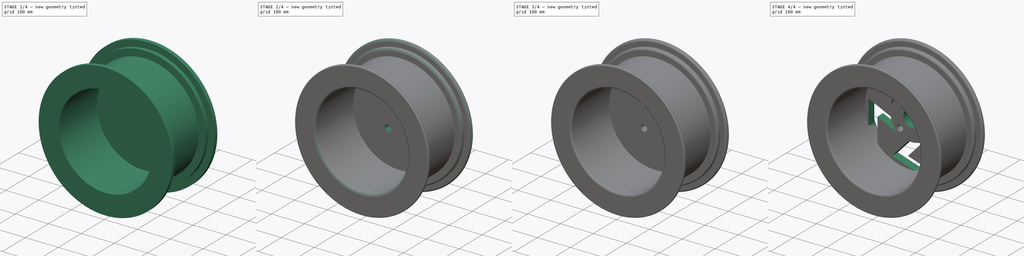
[diagram: build sequence overview — one tinted view per stage of 4, left to right]
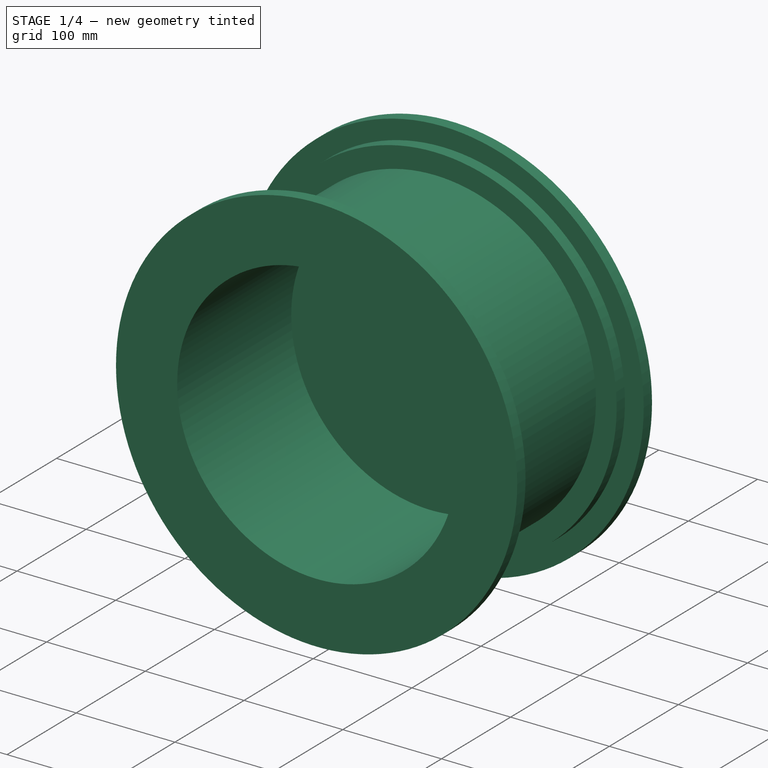
[diagram: stage 1 of 4 — iso view after this stage's code; geometry added in this stage tinted green]
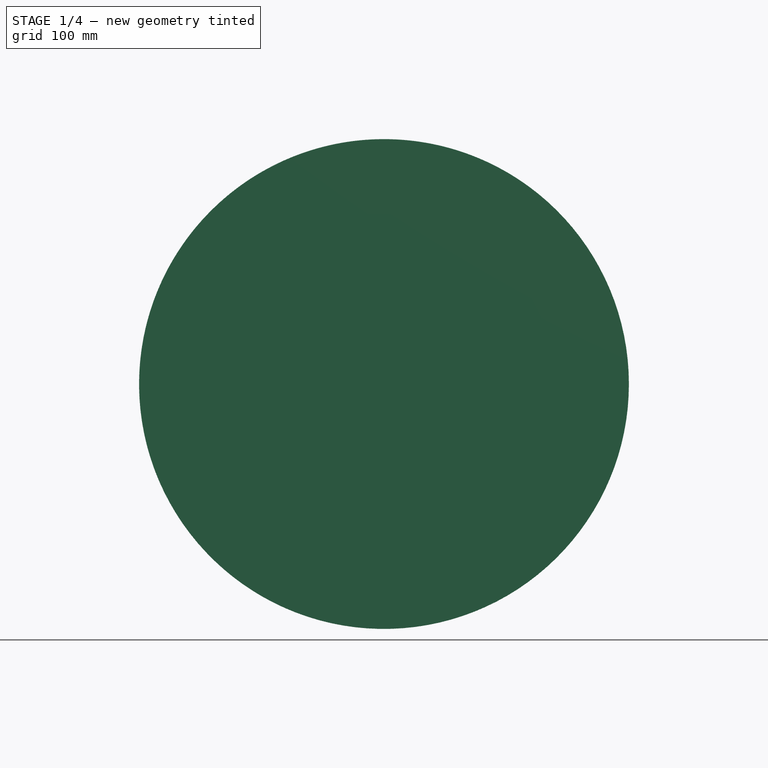
[diagram: stage 1 of 4 — front view after this stage's code; geometry added in this stage tinted green]
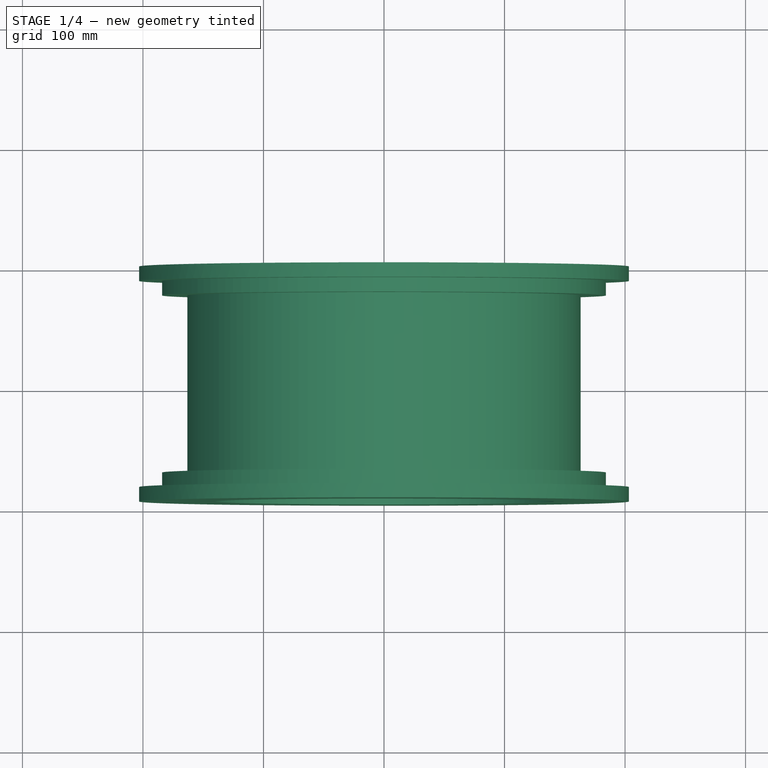
[diagram: stage 1 of 4 — top view after this stage's code; geometry added in this stage tinted green]
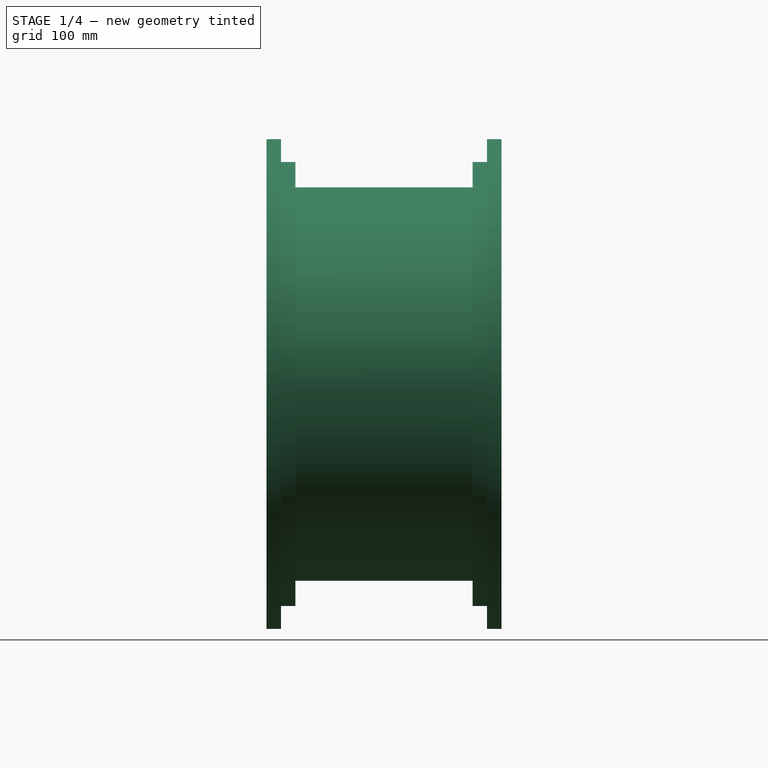
[diagram: stage 1 of 4 — right view after this stage's code; geometry added in this stage tinted green]
FCSTD DOCUMENT  (FreeCAD 1.0R39109 (Git))
Label: Rim Design 1
License: All rights reserved
LicenseURL: https://en.wikipedia.org/wiki/All_rights_reserved
objects: Sketcher::SketchObject×8, PartDesign::Pocket×5, PartDesign::Fillet×4, App::VarSet×2, PartDesign::Pad×1, PartDesign::Groove×1, PartDesign::PolarPattern×1, PartDesign::Body×1
note: 52 computed .brp shape members not serialized (recipe doc carries the construction recipe); baked Part::Feature solids carry a one-line shape summary decoded from their .brp

FEATURE [Sketcher::SketchObject] Sketch
  ArcFitTolerance = 1e-06
  AttachmentSupport = -> [XZ_Plane]
  FullyConstrained = true
  MakeInternals = false
  MapMode = 5
  Placement = pos=(0,0,0) rot=(1,0,0;1.5708rad)
  expr: Constraints[1] = VarSet.Rim_Size
  sketch-geometry (1):
    g0: Circle CenterX=0 CenterY=0 CenterZ=0 NormalX=0 NormalY=0 NormalZ=1 AngleXU=0 Radius=203.2
  constraints (2):
    c: Coincident(g0,g-1)
    c: Diameter(g0) = 406.4
FEATURE [PartDesign::Pad] Pad  label="Base Cylinder"
  Direction = (0,-1,2e-16)
  Length = 195
  Length2 = 10
  Placement = pos=(0,0,0) rot=(1,0,0;1.5708rad)
  Profile = -> Sketch
  ReferenceAxis = -> Sketch [N_Axis]
  Refine = true
  Suppressed = false
  Type = 0
  expr: Length = VarSet001.Tyre_Width
FEATURE [Sketcher::SketchObject] Sketch001  label="Interrnal Drum"
  ArcFitTolerance = 1e-06
  AttachmentSupport = -> [Pad]
  FullyConstrained = true
  MakeInternals = false
  MapMode = 5
  Placement = pos=(0,-195,0) rot=(1,0,0;1.5708rad)
FEATURE [App::VarSet] VarSet  label="Rim Size"
  Rim_Size = 406.4
  expr: Rim_Size = 16 in
FEATURE [App::VarSet] VarSet001  label="Tyre Width"
  Tyre_Width = 195
FEATURE [Sketcher::SketchObject] Sketch002
  ArcFitTolerance = 1e-06
  AttachmentSupport = -> [Pad]
  FullyConstrained = true
  MakeInternals = false
  MapMode = 5
  Placement = pos=(0,-195,0) rot=(1,0,0;1.5708rad)
  expr: Constraints[1] = <<Rim Size>>.Rim_Size - 124 mm
  sketch-geometry (1):
    g0: Circle CenterX=0 CenterY=0 CenterZ=0 NormalX=0 NormalY=0 NormalZ=1 AngleXU=0 Radius=141.2
  constraints (2):
    c: Coincident(g0,g-1)
    c: Diameter(g0) = 282.4
FEATURE [PartDesign::Pocket] Pocket
  BaseFeature = -> Pad
  Direction = (0,1,-2e-16)
  Length = 165
  Length2 = 5
  Placement = pos=(0,0,0) rot=(1,0,0;1.5708rad)
  Profile = -> Sketch002
  ReferenceAxis = -> Sketch002 [N_Axis]
  Refine = true
  Suppressed = false
  Type = 0
  expr: Length = <<Tyre Width>>.Tyre_Width - 30 mm
FEATURE [Sketcher::SketchObject] Sketch003
  ArcFitTolerance = 1e-06
  AttachmentSupport = -> [YZ_Plane]
  ExternalGeometry = -> [Pocket]
  FullyConstrained = true
  MakeInternals = false
  MapMode = 5
  Placement = pos=(0,0,0) rot=(0.57735,0.57735,0.57735;2.0944rad)
  sketch-geometry (10):
    g0: LineSegment [constr] StartX=-195 StartY=203.2 StartZ=0 EndX=-183 EndY=203.2 EndZ=0
    g1: LineSegment StartX=-183 StartY=203.2 StartZ=0 EndX=-183 EndY=184.2 EndZ=0
    g2: LineSegment StartX=-183 StartY=184.2 StartZ=0 EndX=-171 EndY=184.2 EndZ=0
    g3: LineSegment StartX=-171 StartY=184.2 StartZ=0 EndX=-171 EndY=163.2 EndZ=0
    g4: LineSegment StartX=-171 StartY=163.2 StartZ=0 EndX=-24 EndY=163.2 EndZ=0
    g5: LineSegment StartX=-24 StartY=163.2 StartZ=0 EndX=-24 EndY=184.2 EndZ=0
    g6: LineSegment StartX=-24 StartY=184.2 StartZ=0 EndX=-12 EndY=184.2 EndZ=0
    g7: LineSegment StartX=-12 StartY=184.2 StartZ=0 EndX=-12 EndY=203.2 EndZ=0
    g8: LineSegment [constr] StartX=-12 StartY=203.2 StartZ=0 EndX=4.44e-14 EndY=203.2 EndZ=0
    g9: LineSegment StartX=-183 StartY=203.2 StartZ=0 EndX=-12 EndY=203.2 EndZ=0
  constraints (28):
    c: Coincident(g-3,g0)
    c: Horizontal(g0)
    c: Coincident(g0,g1)
    c: Vertical(g1)
    c: Coincident(g1,g2)
    c: Horizontal(g2)
    c: Coincident(g2,g3)
    c: Vertical(g3)
    c: Coincident(g3,g4)
    c: Horizontal(g4)
    c: Coincident(g4,g5)
    c: Vertical(g5)
    c: Coincident(g5,g6)
    c: Horizontal(g6)
    c: Coincident(g6,g7)
    c: Vertical(g7)
    c: Coincident(g7,g8)
    c: Coincident(g8,g-4)
    c: Horizontal(g8)
    c: DistanceX(g0,g0) = 12
    c: DistanceX(g8,g8) = 12
    c: DistanceY(g7,g7) = 19
    c: DistanceY(g1,g1) = 19
    c: DistanceX(g2,g2) = 12
    c: DistanceX(g6,g6) = 12
    c: Coincident(g9,g0)
    c: Coincident(g9,g7)
    c: Distance(g4,g9) = 40
FEATURE [PartDesign::Groove] Groove
  Angle = 360
  Angle2 = 60
  Axis = (1e-16,1,-1e-16)
  Base = (0,0,0)
  BaseFeature = -> Pocket
  Placement = pos=(0,0,0) rot=(1,0,0;1.5708rad)
  Profile = -> Sketch003
  ReferenceAxis = -> Y_Axis
  Refine = true
  Reversed = true
  Suppressed = false
  Type = 0
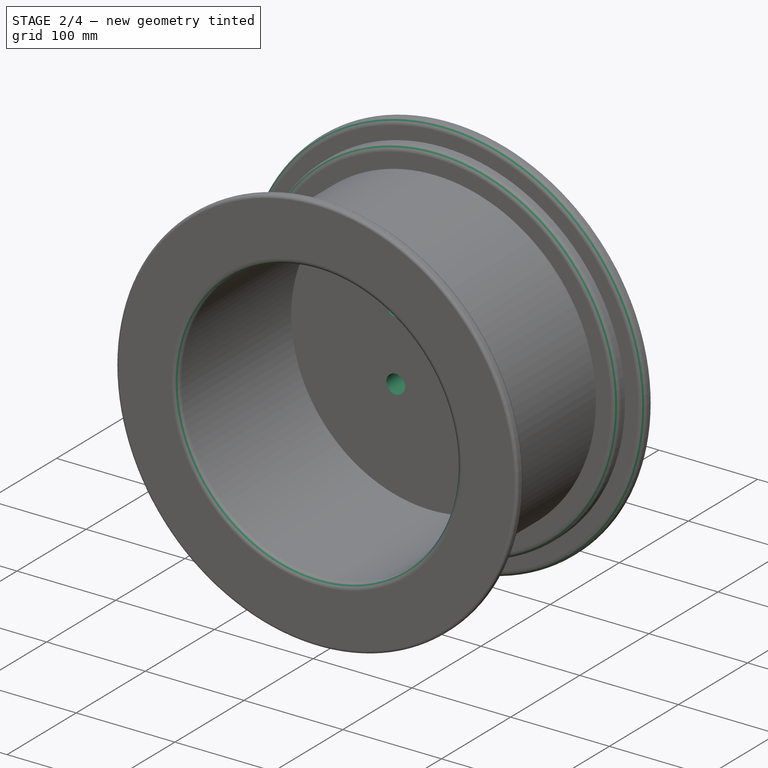
[diagram: stage 2 of 4 — iso view after this stage's code; geometry added in this stage tinted green]
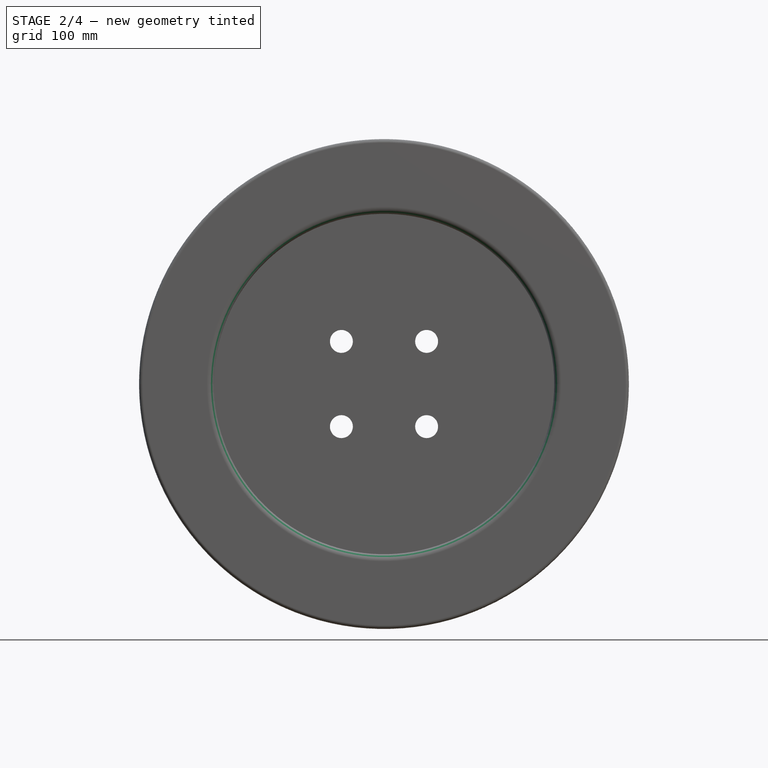
[diagram: stage 2 of 4 — front view after this stage's code; geometry added in this stage tinted green]
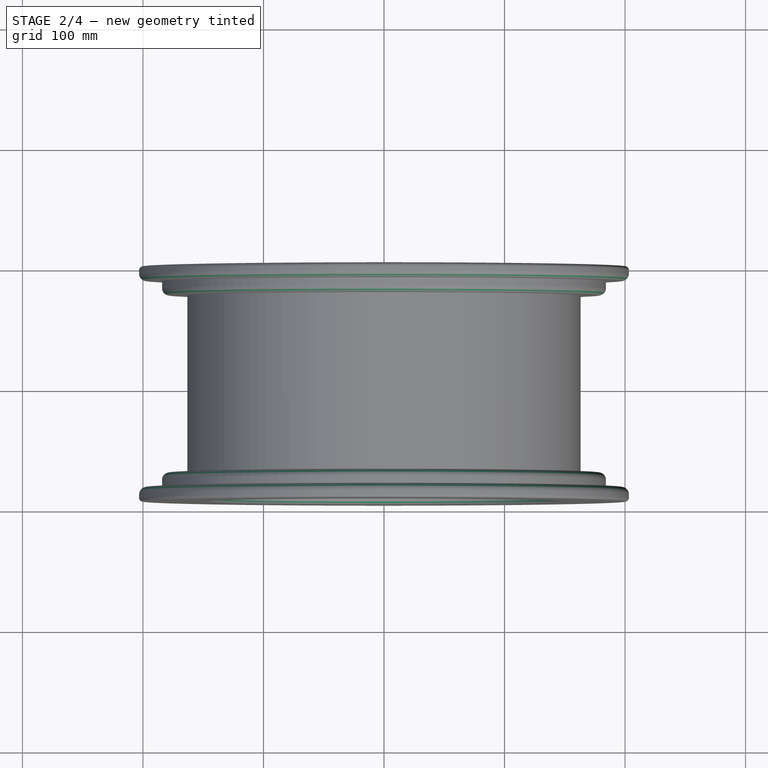
[diagram: stage 2 of 4 — top view after this stage's code; geometry added in this stage tinted green]
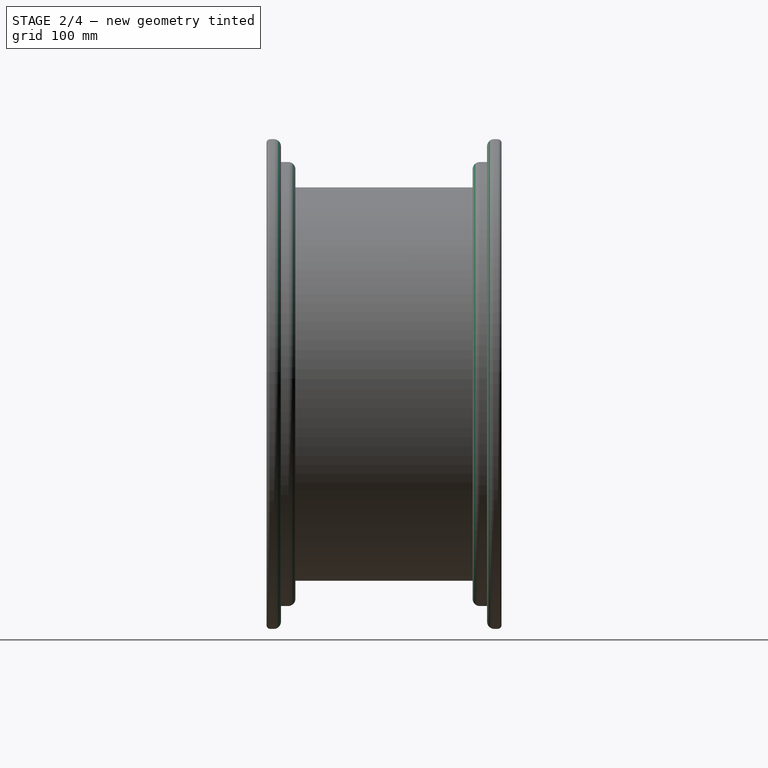
[diagram: stage 2 of 4 — right view after this stage's code; geometry added in this stage tinted green]
FEATURE [PartDesign::Fillet] Fillet
  Base = -> Groove [Edge6,Edge4,Edge3,Edge15,Edge14,Edge11,Edge18]
  BaseFeature = -> Groove
  Placement = pos=(0,0,0) rot=(1,0,0;1.5708rad)
  Radius = 6
  Refine = true
  SupportTransform = false
  Suppressed = false
  UseAllEdges = false
FEATURE [PartDesign::Fillet] Fillet001
  Base = -> Fillet [Edge29,Edge3]
  BaseFeature = -> Fillet
  Placement = pos=(0,0,0) rot=(1,0,0;1.5708rad)
  Radius = 3
  Refine = true
  SupportTransform = false
  Suppressed = false
  UseAllEdges = false
FEATURE [Sketcher::SketchObject] Sketch004
  ArcFitTolerance = 1e-06
  AttachmentSupport = -> [Fillet001]
  FullyConstrained = true
  MakeInternals = false
  MapMode = 5
  Placement = pos=(0,0,0) rot=(-1,0,0;1.5708rad)
  sketch-geometry (6):
    g0: Circle [constr] CenterX=0 CenterY=0 CenterZ=0 NormalX=0 NormalY=0 NormalZ=1 AngleXU=0 Radius=50
    g1: Circle CenterX=-35.3553 CenterY=35.3553 CenterZ=0 NormalX=0 NormalY=0 NormalZ=1 AngleXU=0 Radius=9.5
    g2: Circle CenterX=35.3553 CenterY=35.3553 CenterZ=0 NormalX=0 NormalY=0 NormalZ=1 AngleXU=0 Radius=9.5
    g3: Circle CenterX=35.3553 CenterY=-35.3553 CenterZ=0 NormalX=0 NormalY=0 NormalZ=1 AngleXU=0 Radius=9.5
    g4: Circle CenterX=-35.3553 CenterY=-35.3553 CenterZ=0 NormalX=0 NormalY=0 NormalZ=1 AngleXU=0 Radius=9.5
    g5: LineSegment [constr] StartX=35.3553 StartY=35.3553 StartZ=0 EndX=-35.3553 EndY=-35.3553 EndZ=0
  constraints (13):
    c: Diameter(g0) = 100
    c: Symmetric(g4,g3,g-2)
    c: Symmetric(g3,g2,g-1)
    c: Symmetric(g1,g4,g-1)
    c: Diameter(g2) = 19
    c: Equal(g2,g1)
    c: Equal(g1,g4)
    c: Equal(g4,g3)
    c: PointOnObject(g2,g0)
    c: Coincident(g0,g-1)
    c: Coincident(g5,g2)
    c: Coincident(g5,g4)
    c: Angle(g-1,g5) = 0.785398
FEATURE [PartDesign::Pocket] Pocket001
  BaseFeature = -> Fillet001
  Direction = (0,-1,-2e-16)
  Length = 5
  Length2 = 5
  Placement = pos=(0,0,0) rot=(1,0,0;1.5708rad)
  Profile = -> Sketch004
  ReferenceAxis = -> Sketch004 [N_Axis]
  Refine = true
  Suppressed = false
  Type = 1
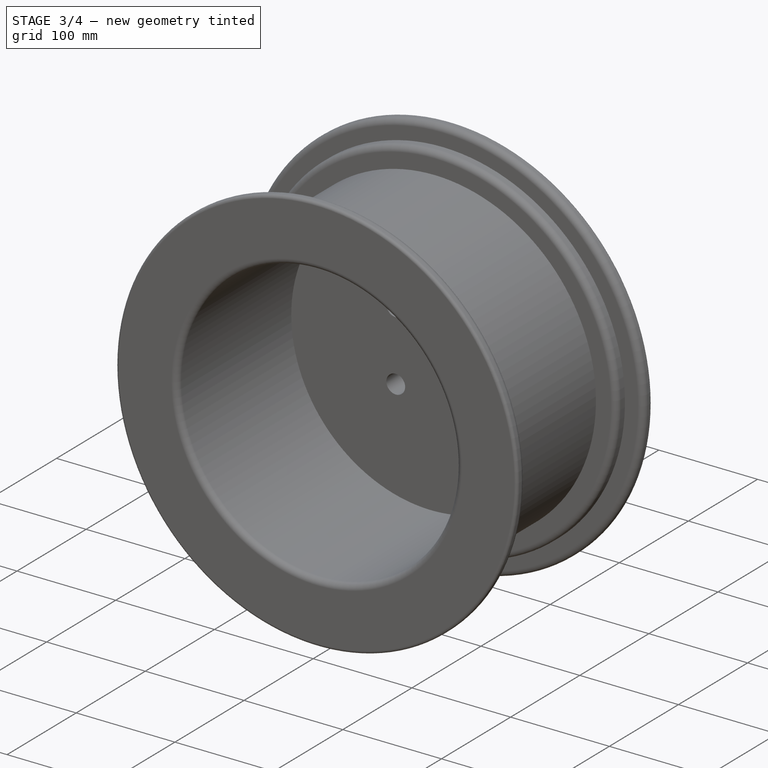
[diagram: stage 3 of 4 — iso view after this stage's code; geometry added in this stage tinted green]
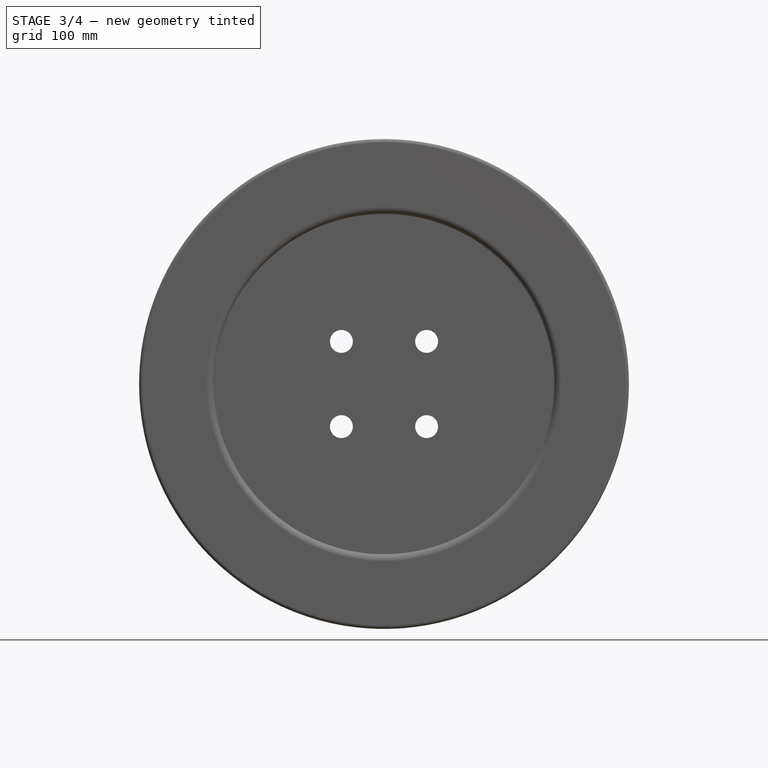
[diagram: stage 3 of 4 — front view after this stage's code; geometry added in this stage tinted green]
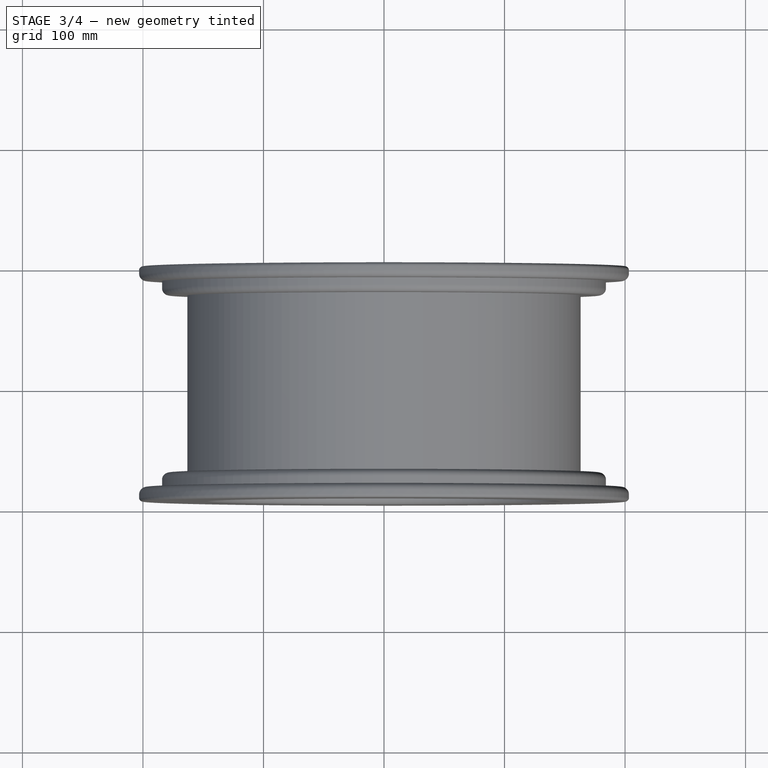
[diagram: stage 3 of 4 — top view after this stage's code; geometry added in this stage tinted green]
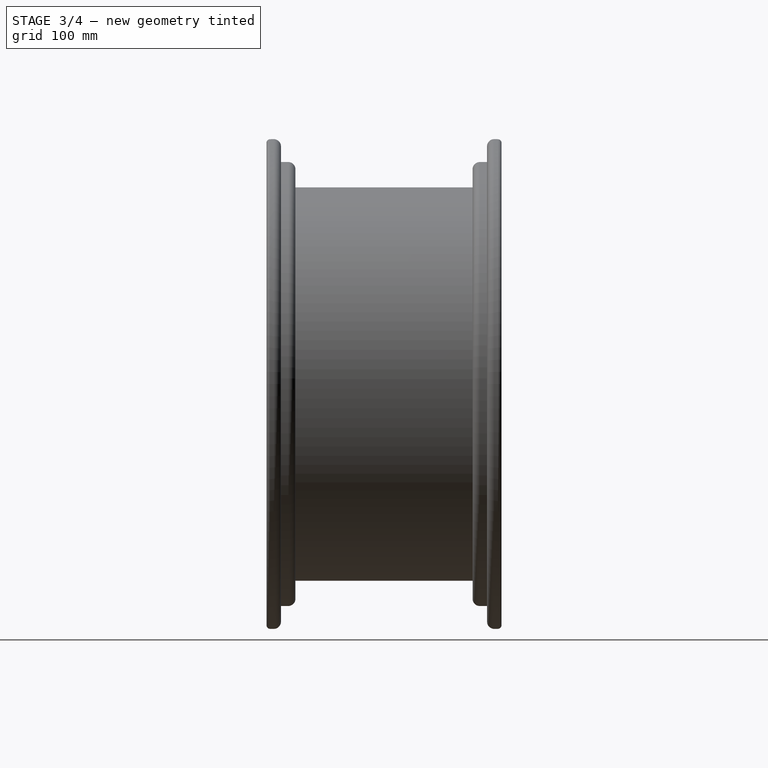
[diagram: stage 3 of 4 — right view after this stage's code; geometry added in this stage tinted green]
FEATURE [Sketcher::SketchObject] Sketch005
  ArcFitTolerance = 1e-06
  AttachmentSupport = -> [Pocket001]
  ExternalGeometry = -> [Pocket001]
  FullyConstrained = true
  MakeInternals = false
  MapMode = 5
  Placement = pos=(0,0,0) rot=(-1,0,0;1.5708rad)
  expr: Constraints[3] = <<Rim Size>>.Rim_Size - 124 mm
  sketch-geometry (2):
    g0: Circle CenterX=0 CenterY=0 CenterZ=0 NormalX=0 NormalY=0 NormalZ=1 AngleXU=0 Radius=64.5
    g1: Circle CenterX=0 CenterY=0 CenterZ=0 NormalX=0 NormalY=0 NormalZ=1 AngleXU=0 Radius=141.2
  constraints (4):
    c: Coincident(g0,g-1)
    c: Distance(g-3,g0) = 5
    c: Coincident(g1,g0)
    c: Diameter(g1) = 282.4
FEATURE [PartDesign::Pocket] Pocket002
  BaseFeature = -> Pocket001
  Direction = (0,-1,-2e-16)
  Length = 5
  Length2 = 5
  Placement = pos=(0,0,0) rot=(1,0,0;1.5708rad)
  Profile = -> Sketch005
  ReferenceAxis = -> Sketch005 [N_Axis]
  Refine = true
  Suppressed = false
  Type = 0
FEATURE [PartDesign::Fillet] Fillet002
  Base = -> Pocket002 [Edge11]
  BaseFeature = -> Pocket002
  Placement = pos=(0,0,0) rot=(1,0,0;1.5708rad)
  Radius = 2.5
  Refine = true
  SupportTransform = false
  Suppressed = false
  UseAllEdges = false
FEATURE [PartDesign::Fillet] Fillet003
  Base = -> Fillet002 [Edge18]
  BaseFeature = -> Fillet002
  Placement = pos=(0,0,0) rot=(1,0,0;1.5708rad)
  Radius = 2.5
  Refine = true
  SupportTransform = false
  Suppressed = false
  UseAllEdges = false
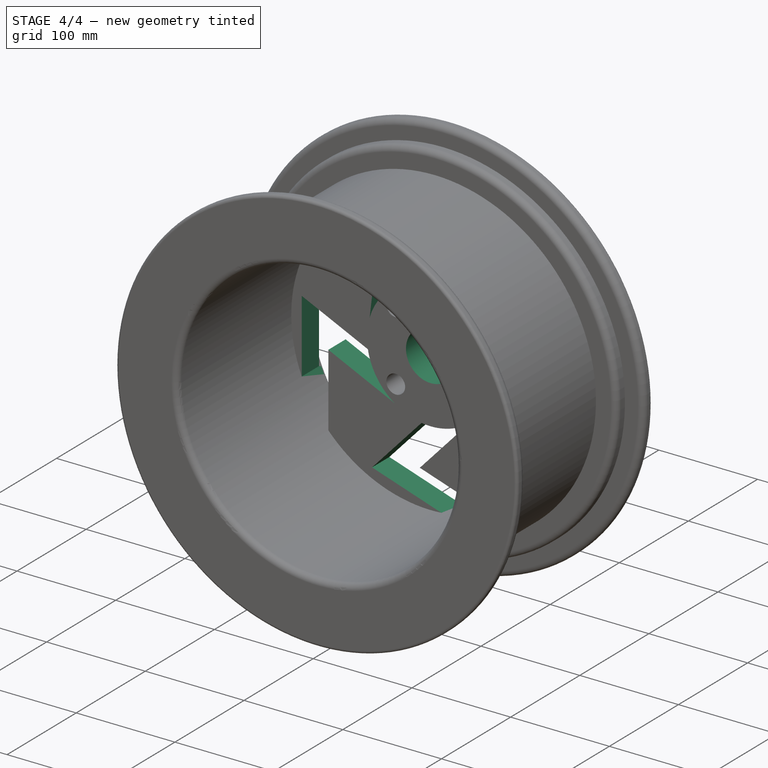
[diagram: stage 4 of 4 — iso view after this stage's code; geometry added in this stage tinted green]
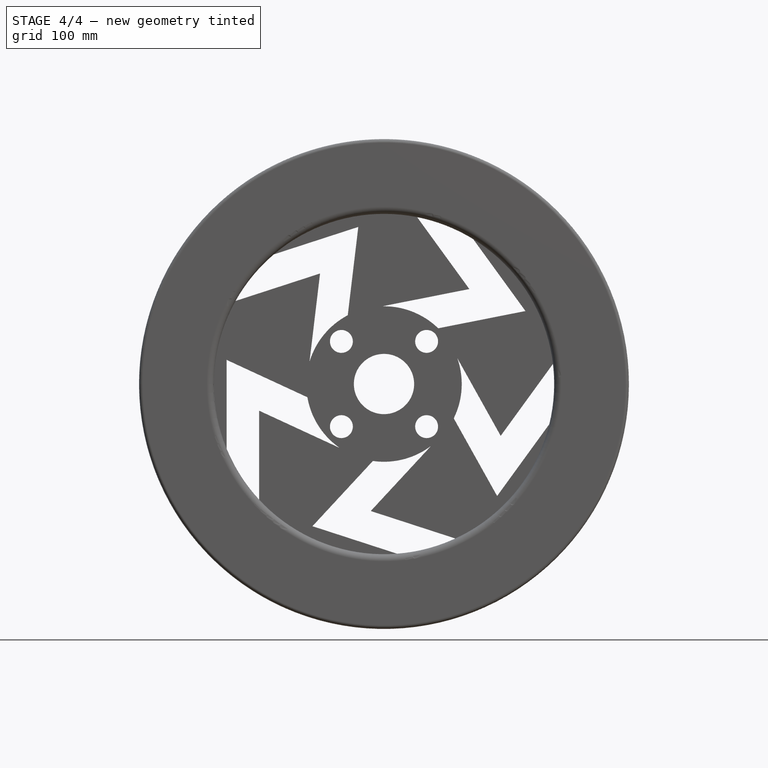
[diagram: stage 4 of 4 — front view after this stage's code; geometry added in this stage tinted green]
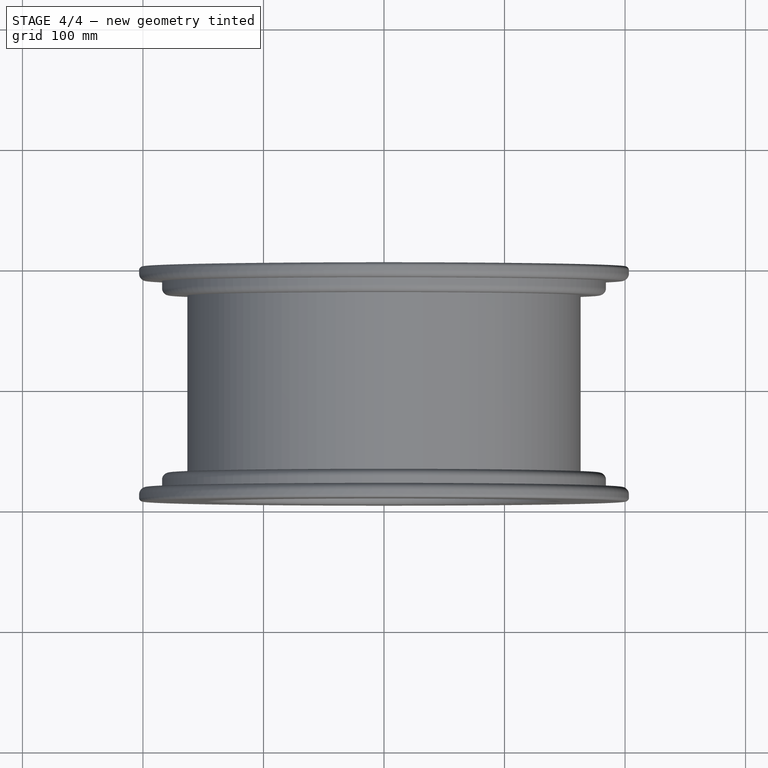
[diagram: stage 4 of 4 — top view after this stage's code; geometry added in this stage tinted green]
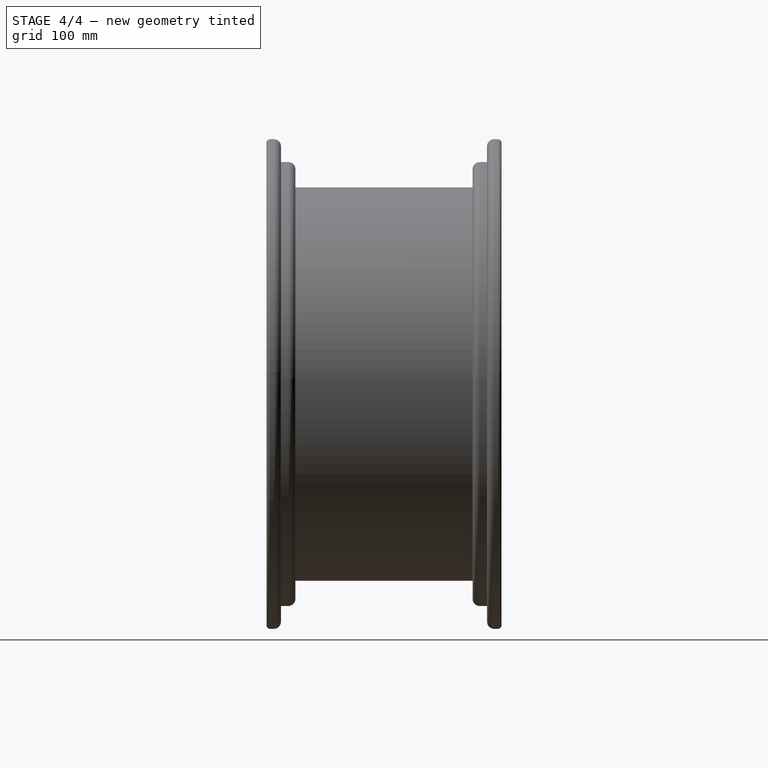
[diagram: stage 4 of 4 — right view after this stage's code; geometry added in this stage tinted green]
FEATURE [Sketcher::SketchObject] Sketch006
  ArcFitTolerance = 1e-06
  AttachmentSupport = -> [Fillet003]
  ExternalGeometry = -> [Fillet003]
  FullyConstrained = true
  MakeInternals = false
  MapMode = 5
  Placement = pos=(0,-5,0) rot=(-1,0,0;1.5708rad)
  sketch-geometry (6):
    g0: LineSegment StartX=-63.5607 StartY=10.9673 StartZ=0 EndX=-130.549 EndY=-20 EndZ=0
    g1: LineSegment StartX=-130.549 StartY=-20 StartZ=0 EndX=-130.549 EndY=53.7997 EndZ=0
    g2: LineSegment StartX=-36.6259 StartY=53.0923 StartZ=0 EndX=-103.614 EndY=22.125 EndZ=0
    g3: LineSegment StartX=-103.614 StartY=22.125 StartZ=0 EndX=-103.614 EndY=95.9247 EndZ=0
    g4: ArcOfCircle CenterX=0 CenterY=0 CenterZ=0 NormalX=0 NormalY=0 NormalZ=1 AngleXU=0 Radius=64.5 StartAngle=2.17468 EndAngle=2.97073
    g5: ArcOfCircle CenterX=0 CenterY=0 CenterZ=0 NormalX=0 NormalY=0 NormalZ=1 AngleXU=0 Radius=141.2 StartAngle=2.39471 EndAngle=2.7507
  constraints (18):
    c: Coincident(g0,g1)
    c: PointOnObject(g1,g-3)
    c: Coincident(g2,g3)
    c: Vertical(g3)
    c: Parallel(g2,g0)
    c: Parallel(g3,g1)
    c: Coincident(g4,g-1)
    c: Coincident(g4,g0)
    c: Coincident(g4,g2)
    c: Coincident(g5,g4)
    c: Coincident(g5,g1)
    c: Coincident(g5,g3)
    c: Equal(g1,g3)
    c: Equal(g0,g2)
    c: Distance(g2,g0) = 50
    c: Equal(g2,g3)
    c: PointOnObject(g0,g-5)
    c: Distance(g0,g-1) = 20
FEATURE [PartDesign::Pocket] Pocket003
  BaseFeature = -> Fillet003
  Direction = (0,-1,-2e-16)
  Length = 5
  Length2 = 5
  Placement = pos=(0,0,0) rot=(1,0,0;1.5708rad)
  Profile = -> Sketch006
  ReferenceAxis = -> Sketch006 [N_Axis]
  Refine = true
  Suppressed = false
  Type = 1
FEATURE [PartDesign::PolarPattern] PolarPattern
  Angle = 360
  Axis = -> Sketch006 [N_Axis]
  BaseFeature = -> Pocket003
  Mode = 0
  Occurrences = 5
  Offset = 120
  Originals = -> [Pocket003]
  Placement = pos=(0,0,0) rot=(1,0,0;1.5708rad)
  Refine = true
  Suppressed = false
  TransformMode = 0
FEATURE [Sketcher::SketchObject] Sketch007
  ArcFitTolerance = 1e-06
  AttachmentSupport = -> [PolarPattern]
  FullyConstrained = true
  MakeInternals = false
  MapMode = 5
  Placement = pos=(0,0,0) rot=(-1,0,0;1.5708rad)
  sketch-geometry (1):
    g0: Circle CenterX=0 CenterY=0 CenterZ=0 NormalX=0 NormalY=0 NormalZ=1 AngleXU=0 Radius=25
  constraints (2):
    c: Coincident(g0,g-1)
    c: Diameter(g0) = 50
FEATURE [PartDesign::Pocket] Pocket004
  BaseFeature = -> PolarPattern
  Direction = (0,-1,-2e-16)
  Length = 5
  Length2 = 5
  Placement = pos=(0,0,0) rot=(1,0,0;1.5708rad)
  Profile = -> Sketch007
  ReferenceAxis = -> Sketch007 [N_Axis]
  Refine = true
  Suppressed = false
  Type = 1
FEATURE [PartDesign::Body] Body
  AllowCompound = false
  Group = -> [Sketch,Pad,Sketch001,Sketch002,Pocket,Sketch003,Groove,Fillet,Fillet001,Sketch004,Pocket001,Sketch005,Pocket002,Fillet002,Fillet003,Sketch006,Pocket003,PolarPattern,Sketch007,Pocket004]
  Origin = -> Origin
  Tip = -> Pocket004
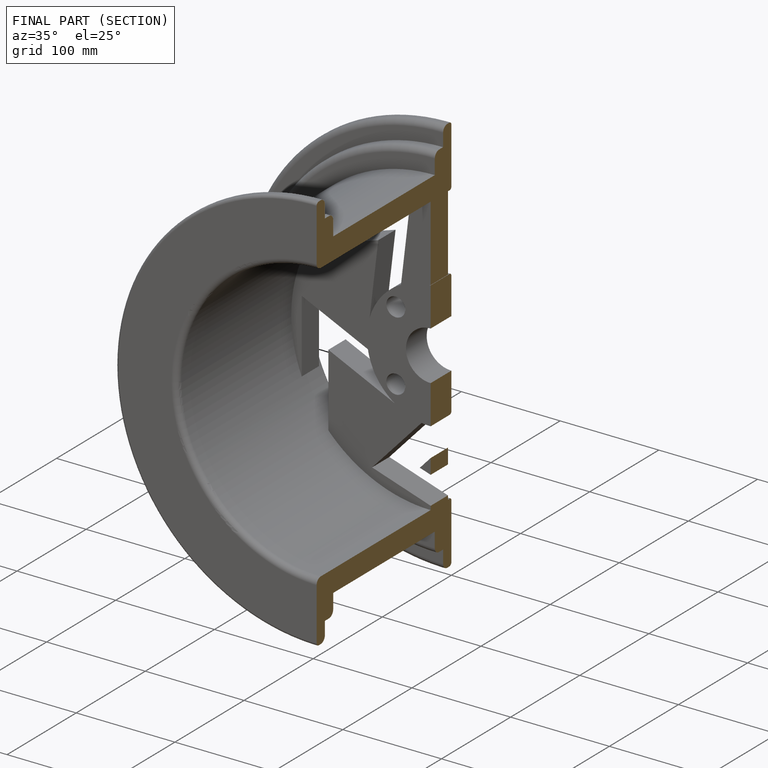
[diagram: finished part — half-section view (interior)]
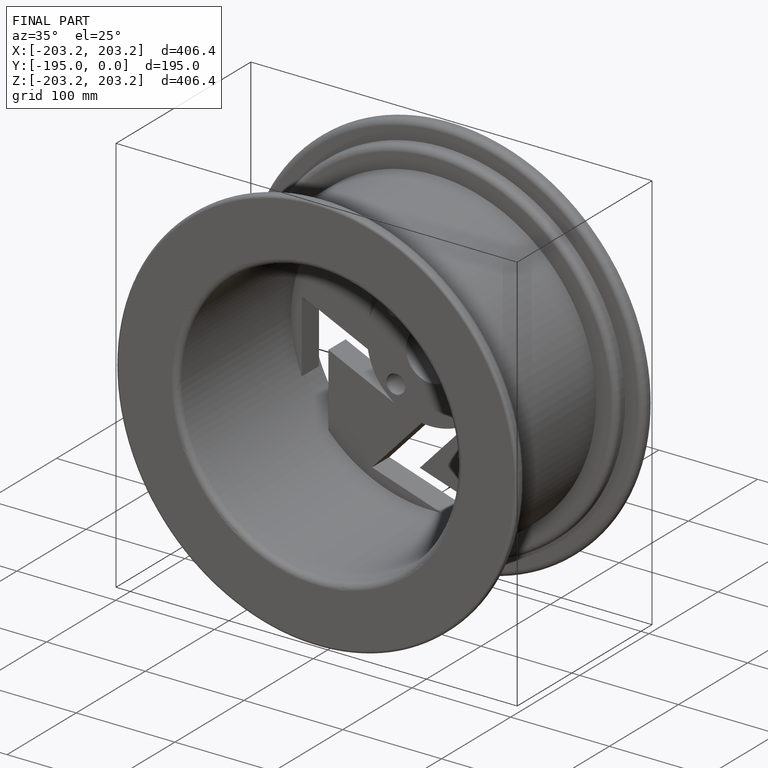
[diagram: finished part — iso view with bounding-box wireframe]
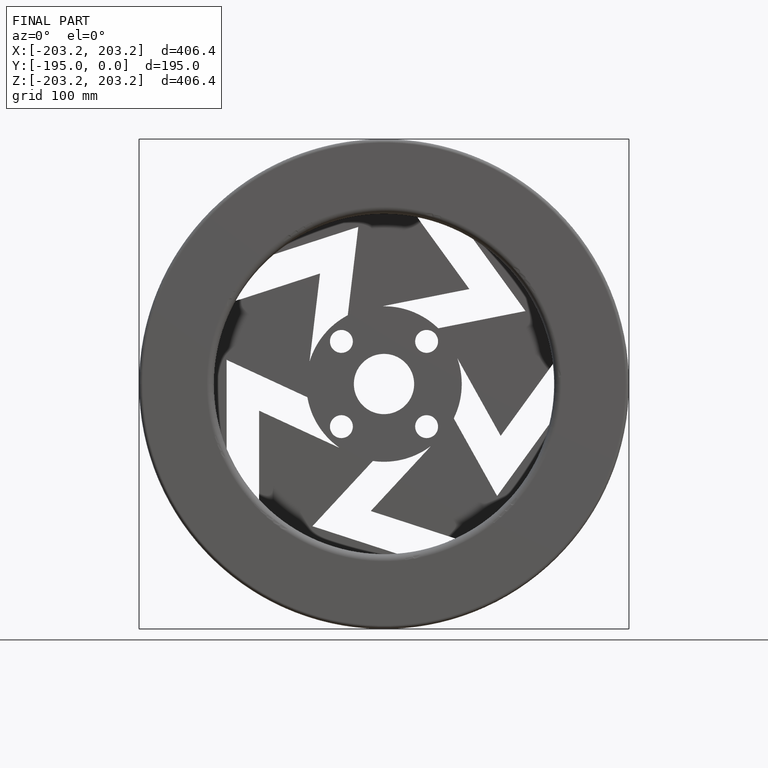
[diagram: finished part — front view with bounding-box wireframe]
